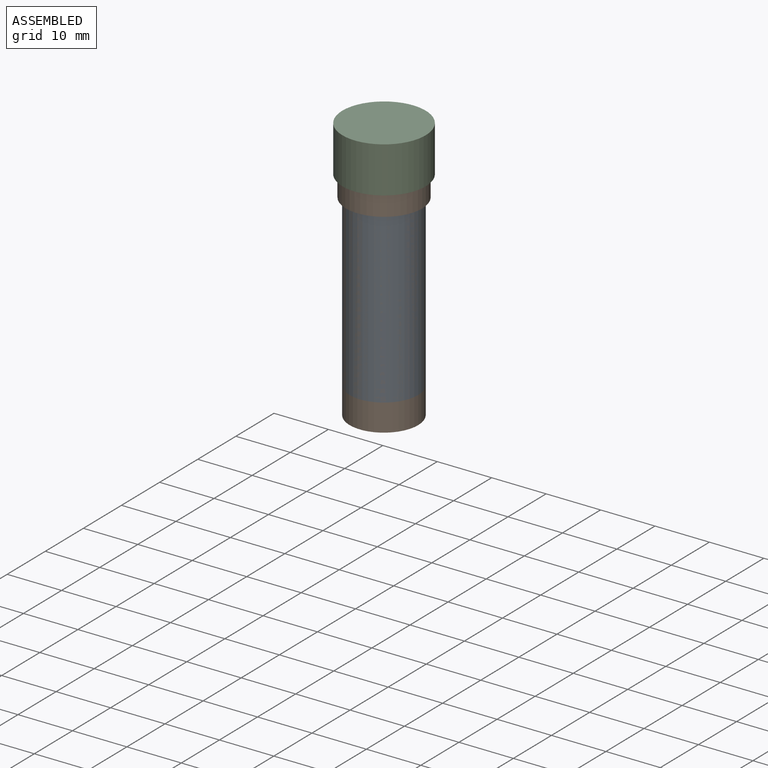
[diagram: assembled view]
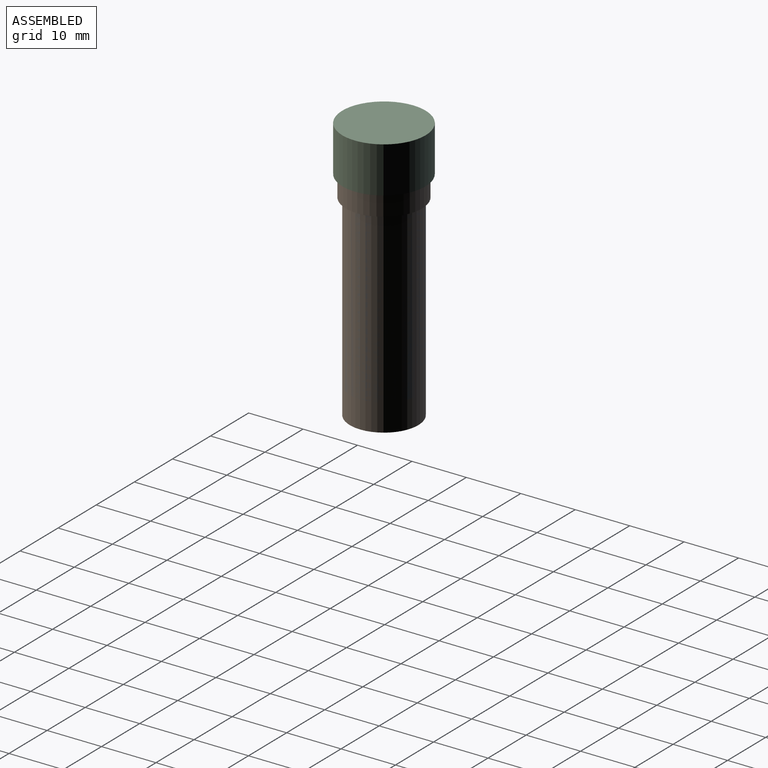
[diagram: assembled view, second angle]
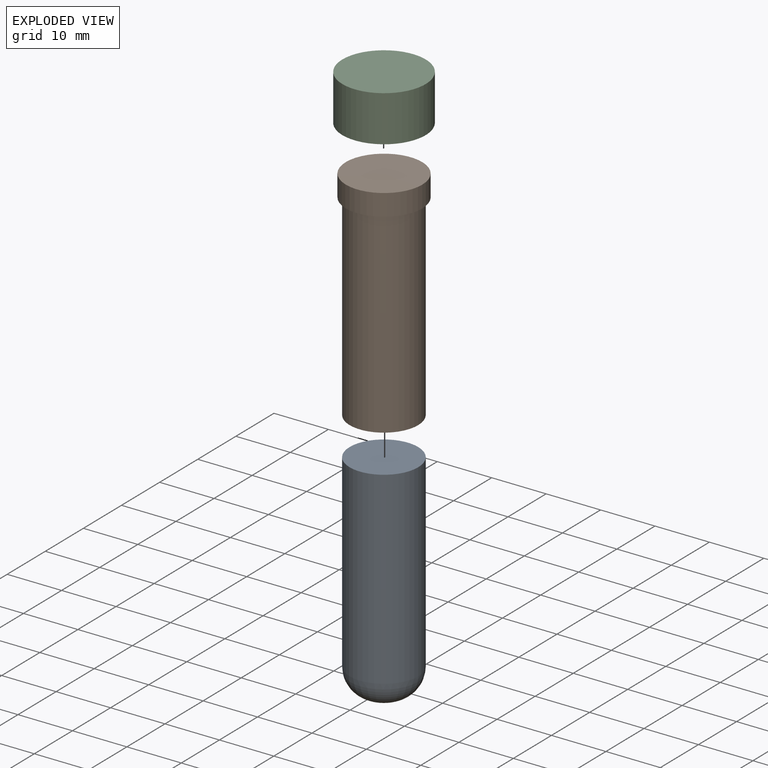
[diagram: exploded view]
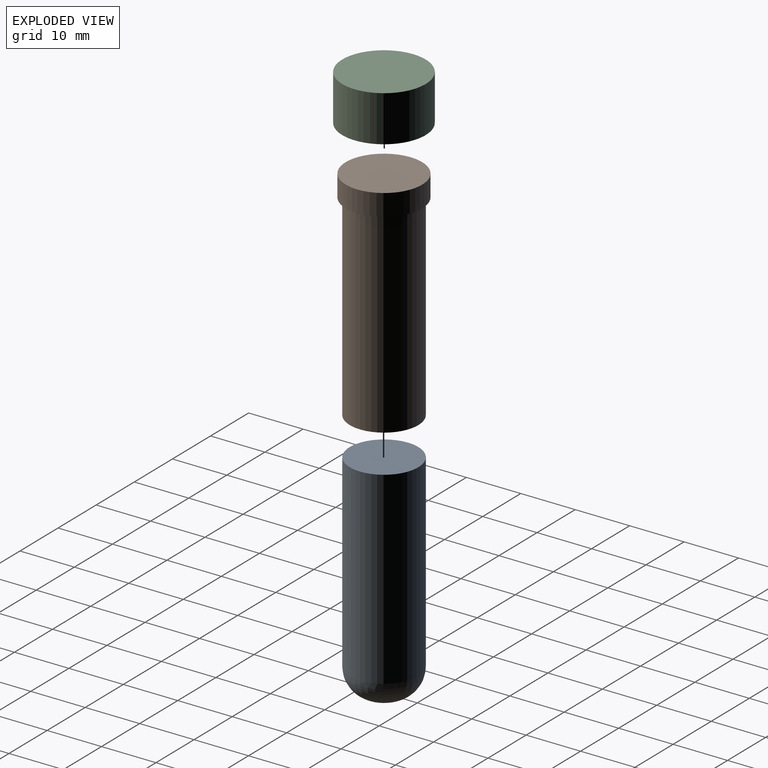
[diagram: exploded view, second angle]
ASSEMBLY  parts=3 mates=2
PART A: 4 faces, bbox 12.6x12.6x39.7 mm
  f0: plane 12.59x12.59mm, normal (0,0,1), area 124.6mm2, adj f2
  f1: plane 2.59x2.59mm, normal (0,0,-1), area 5.3mm2, adj f3
  f2: cylinder r=6.3mm len=34.71mm, axis (0,0,1), area 1373.2mm2, adj f0,f3
  f3: torus R=1.3mm, axis (0,0,1), area 221.1mm2, adj f1,f2
PART B: 5 faces, bbox 14x14x40.1 mm
  f0: plane 14.03x14.03mm, normal (0,0,1), area 30.1mm2, adj f2,f3
  f1: cone r=0mm half-angle=89.1deg, axis (0,0,-1), area 154.7mm2, adj f2
  f2: cylinder r=7.02mm len=14.03mm, axis (0,0,-1), area 174.3mm2, adj f0,f1
  f3: cylinder r=6.3mm len=36.18mm, axis (0,0,1), area 1431.4mm2, adj f0,f4
  f4: plane 12.59x12.59mm, normal (0,0,1), area 124.6mm2, adj f3
PART C: 3 faces, bbox 15.3x15.3x8.5 mm
  f0: plane 15.31x15.31mm, normal (0,0,-1), area 184.1mm2, adj f1
  f1: cylinder r=7.66mm len=15.31mm, axis (0,0,-1), area 407.9mm2, adj f0,f2
  f2: plane 15.31x15.31mm, normal (0,0,1), area 184.1mm2, adj f1
PLACE A t=(-17.64,-14.45,-0.09)mm
PLACE B rot(axis=(1,0,0),180deg) t=(-17.64,-14.45,-27.55)mm
PLACE C t=(-17.64,-14.45,6.36)mm
MATE fastened A.f3 <-> B.f3  axis (0,0,-1) through (-17.66,-14.45,-33.67)mm
MATE fastened B.f1 <-> C.f1  axis (0,0,-1) through (-17.64,-14.45,6.36)mm
